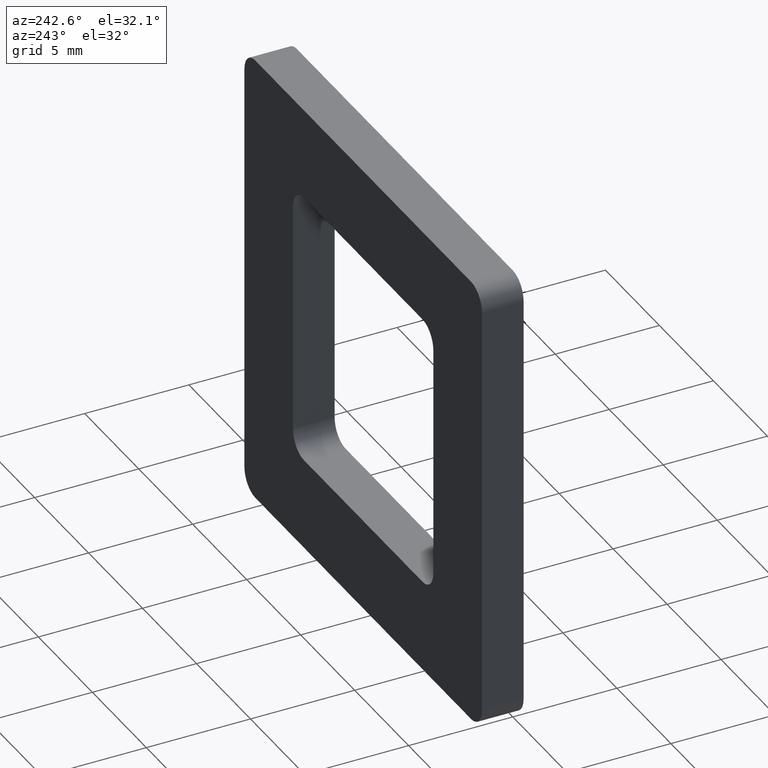
[diagram: clean part render]
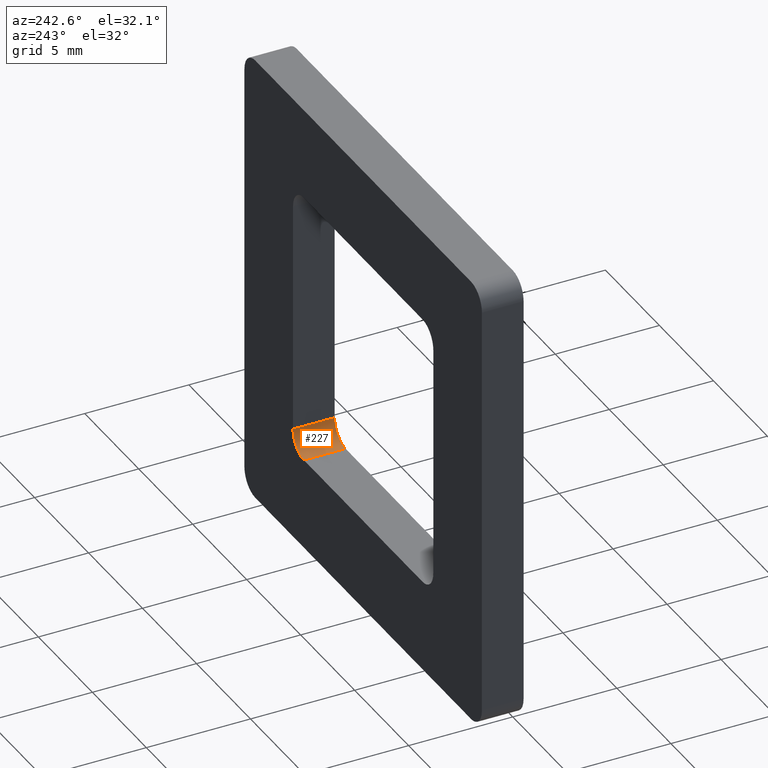
[diagram: same view with one face highlighted and labeled with its STEP entity id]
A machine part, auxiliary view. The second image highlights one B-rep face of the part: STEP entity #227.
In plain terms, the highlighted face is a freeform B-spline surface patch.
Its self-contained STEP definition (entity closure, byte-faithful):
#152=CARTESIAN_POINT('',(5.499999523162879,0.0,-6.600009918212890));
#153=VERTEX_POINT('',#152);
#159=CARTESIAN_POINT('',(5.499999523162879,2.0,-6.600009918212890));
#160=VERTEX_POINT('',#159);
#161=CARTESIAN_POINT('',(5.499999523162879,2.0,-6.600009918212890));
#162=CARTESIAN_POINT('',(5.499999523162879,0.0,-6.600009918212890));
#163=QUASI_UNIFORM_CURVE('',1,(#161,#162),.UNSPECIFIED.,.F.,.U.);
#164=EDGE_CURVE('',#160,#153,#163,.T.);
#175=CARTESIAN_POINT('',(6.499656846994204,2.050000000000000,-5.573832926208624));
#176=CARTESIAN_POINT('',(6.499656846994204,-0.051250000000000,-5.573832926208624));
#177=CARTESIAN_POINT('',(6.528224020900884,2.050000000000000,-6.664767461861905));
#178=CARTESIAN_POINT('',(6.528224020900884,-0.051250000000000,-6.664767461861905));
#179=CARTESIAN_POINT('',(5.438951027257865,2.050000000000000,-6.598144719303271));
#180=CARTESIAN_POINT('',(5.438951027257865,-0.051250000000000,-6.598144719303271));
#188=(BOUNDED_SURFACE()B_SPLINE_SURFACE(1,2,((#175,#177,#179),(#176,#178,#180)),.UNSPECIFIED.,.F.,.F.,.U.)B_SPLINE_SURFACE_WITH_KNOTS((2,2),(3,3),(0.0,2.101250000000000),(0.0,1.0),.UNSPECIFIED.)GEOMETRIC_REPRESENTATION_ITEM()RATIONAL_B_SPLINE_SURFACE(((1.0,0.675590207615660,1.0),(1.0,0.675590207615660,1.0)))REPRESENTATION_ITEM('')SURFACE());
#189=CARTESIAN_POINT('',(6.499999523162880,0.0,-5.600009874501520));
#190=VERTEX_POINT('',#189);
#191=CARTESIAN_POINT('',(5.499999523162879,0.0,-6.600009918212890));
#192=CARTESIAN_POINT('',(5.602271969401458,0.0,-6.600064714899125));
#193=CARTESIAN_POINT('',(5.774039546435617,0.0,-6.573406871039614));
#194=CARTESIAN_POINT('',(6.011577085845880,0.0,-6.469867359732230));
#195=CARTESIAN_POINT('',(6.209455085975989,0.0,-6.321235396156228));
#196=CARTESIAN_POINT('',(6.354214869257675,0.0,-6.135736835996869));
#197=CARTESIAN_POINT('',(6.434932973211570,0.0,-5.964990175707746));
#198=CARTESIAN_POINT('',(6.486094737115680,0.0,-5.796351508142365));
#199=CARTESIAN_POINT('',(6.500018038630845,0.0,-5.677733558134620));
#200=CARTESIAN_POINT('',(6.499999523162880,0.0,-5.600009874501520));
#201=B_SPLINE_CURVE_WITH_KNOTS('',3,(#191,#192,#193,#194,#195,#196,#197,#198,#199,#200),.UNSPECIFIED.,.F.,.U.,(4,1,1,1,1,1,1,4),(0.000000027071582,0.306796084268035,0.515421910505826,0.773139261879653,1.043111385976356,1.214920865244872,1.337640319665820,1.570806226589116),.UNSPECIFIED.);
#202=EDGE_CURVE('',#153,#190,#201,.T.);
#203=ORIENTED_EDGE('',*,*,#202,.T.);
#204=CARTESIAN_POINT('',(6.499999523162880,2.0,-5.600009874501520));
#205=VERTEX_POINT('',#204);
#206=CARTESIAN_POINT('',(6.499999523162880,2.0,-5.600009874501520));
#207=CARTESIAN_POINT('',(6.499999523162880,0.0,-5.600009874501520));
#208=QUASI_UNIFORM_CURVE('',1,(#206,#207),.UNSPECIFIED.,.F.,.U.);
#209=EDGE_CURVE('',#205,#190,#208,.T.);
#210=ORIENTED_EDGE('',*,*,#209,.F.);
#211=CARTESIAN_POINT('',(5.499999523162879,2.0,-6.600009918212890));
#212=CARTESIAN_POINT('',(5.602270638074455,1.999999999999999,-6.600062803025037));
#213=CARTESIAN_POINT('',(5.774042799332637,1.999999999999999,-6.573411813358403));
#214=CARTESIAN_POINT('',(6.011578115039709,1.999999999999999,-6.469865829517368));
#215=CARTESIAN_POINT('',(6.183059080250349,2.0,-6.341046102280165));
#216=CARTESIAN_POINT('',(6.325186876513041,1.999999999999999,-6.176262032580319));
#217=CARTESIAN_POINT('',(6.418501508522814,2.000000000000001,-6.011544249635122));
#218=CARTESIAN_POINT('',(6.484179233180799,2.0,-5.812715159640356));
#219=CARTESIAN_POINT('',(6.500015928308903,2.0,-5.677732489993115));
#220=CARTESIAN_POINT('',(6.499999523162880,2.0,-5.600009874501520));
#221=B_SPLINE_CURVE_WITH_KNOTS('',3,(#211,#212,#213,#214,#215,#216,#217,#218,#219,#220),.UNSPECIFIED.,.F.,.U.,(4,1,1,1,1,1,1,4),(0.000000027071582,0.306796084268035,0.515421910505826,0.773139261879653,0.944934203357256,1.165832497648089,1.337640319665820,1.570806226589116),.UNSPECIFIED.);
#222=EDGE_CURVE('',#160,#205,#221,.T.);
#223=ORIENTED_EDGE('',*,*,#222,.F.);
#224=ORIENTED_EDGE('',*,*,#164,.T.);
#225=EDGE_LOOP('',(#203,#210,#223,#224));
#226=FACE_OUTER_BOUND('',#225,.T.);
#227=ADVANCED_FACE('',(#226),#188,.F.);